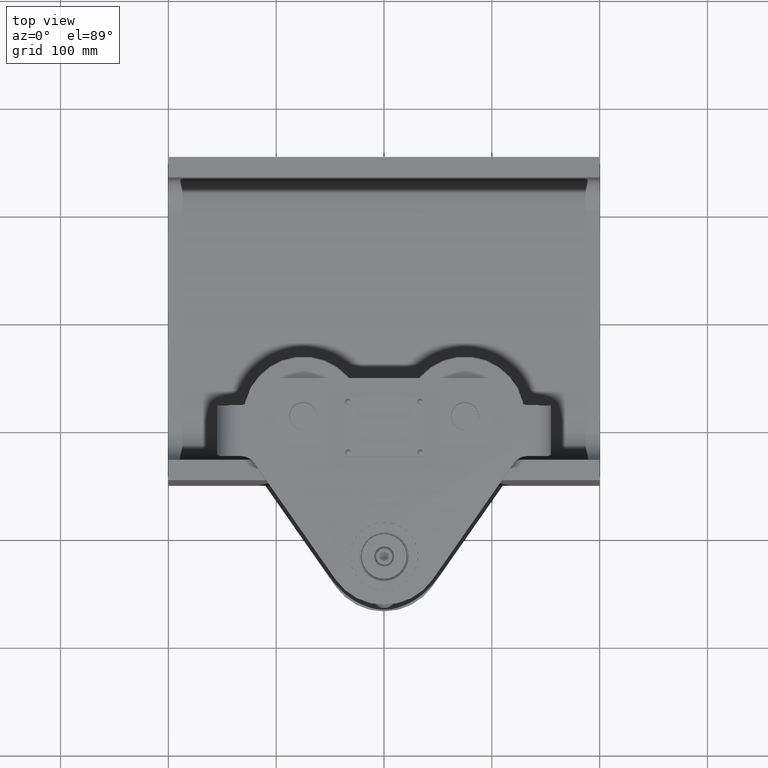
[diagram: clean part render]
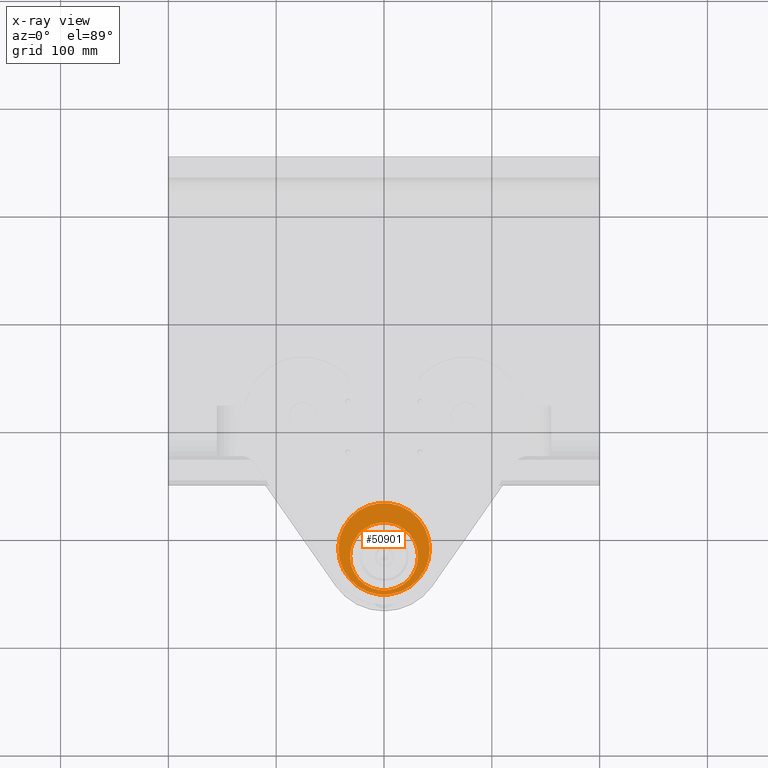
[diagram: x-ray — body ghosted, one internal face saturated and labeled with its STEP entity id]
A machine part, top view, then the same camera in x-ray: the body is ghosted and one INTERNAL B-rep face — a face not visible from any outside direction — is saturated and labeled: STEP entity #50901.
In plain terms, the highlighted planar face has unit normal (0, 0, 1).
Its self-contained STEP definition (entity closure, byte-faithful):
#2968 = CARTESIAN_POINT ( 'NONE',  ( 2.418565278885938000E-014, -220.9999999999999400, 164.9999999999999400 ) ) ;
#3552 = CARTESIAN_POINT ( 'NONE',  ( 2.418565278885938000E-014, -213.9999999999999400, 164.9999999999999400 ) ) ;
#4224 = ORIENTED_EDGE ( 'NONE', *, *, #39123, .F. ) ;
#4453 = AXIS2_PLACEMENT_3D ( 'NONE', #45977, #41595, #33731 ) ;
#4667 = VERTEX_POINT ( 'NONE', #14300 ) ;
#5195 = FACE_OUTER_BOUND ( 'NONE', #19441, .T. ) ;
#6652 = EDGE_CURVE ( 'NONE', #53213, #4667, #46993, .T. ) ;
#6693 = CARTESIAN_POINT ( 'NONE',  ( -31.49999999999997900, -220.9999999999999400, 164.9999999999999400 ) ) ;
#6821 = DIRECTION ( 'NONE',  ( 1.000000000000000000, 0.0000000000000000000, 0.0000000000000000000 ) ) ;
#8190 = PLANE ( 'NONE',  #4453 ) ;
#11118 = DIRECTION ( 'NONE',  ( 0.0000000000000000000, 0.0000000000000000000, 1.000000000000000000 ) ) ;
#14300 = CARTESIAN_POINT ( 'NONE',  ( 42.50000000000002800, -213.9999999999999400, 164.9999999999999400 ) ) ;
#14981 = CARTESIAN_POINT ( 'NONE',  ( 2.418565278885938000E-014, -220.9999999999999400, 164.9999999999999400 ) ) ;
#15537 = DIRECTION ( 'NONE',  ( 1.000000000000000000, 0.0000000000000000000, 0.0000000000000000000 ) ) ;
#19441 = EDGE_LOOP ( 'NONE', ( #24042, #46095 ) ) ;
#19561 = AXIS2_PLACEMENT_3D ( 'NONE', #2968, #11118, #53470 ) ;
#19568 = DIRECTION ( 'NONE',  ( 0.0000000000000000000, 0.0000000000000000000, 1.000000000000000000 ) ) ;
#19697 = CARTESIAN_POINT ( 'NONE',  ( -42.49999999999998600, -213.9999999999999400, 164.9999999999999400 ) ) ;
#20783 = AXIS2_PLACEMENT_3D ( 'NONE', #3552, #24144, #15537 ) ;
#24042 = ORIENTED_EDGE ( 'NONE', *, *, #49320, .T. ) ;
#24144 = DIRECTION ( 'NONE',  ( 0.0000000000000000000, 0.0000000000000000000, 1.000000000000000000 ) ) ;
#26489 = CIRCLE ( 'NONE', #20783, 42.50000000000000700 ) ;
#30006 = FACE_BOUND ( 'NONE', #42816, .T. ) ;
#30389 = VERTEX_POINT ( 'NONE', #6693 ) ;
#33731 = DIRECTION ( 'NONE',  ( 1.000000000000000000, 0.0000000000000000000, -0.0000000000000000000 ) ) ;
#35319 = CIRCLE ( 'NONE', #46013, 31.50000000000000000 ) ;
#36242 = ORIENTED_EDGE ( 'NONE', *, *, #46927, .F. ) ;
#37239 = AXIS2_PLACEMENT_3D ( 'NONE', #41020, #49189, #49730 ) ;
#39123 = EDGE_CURVE ( 'NONE', #41215, #30389, #35319, .T. ) ;
#41020 = CARTESIAN_POINT ( 'NONE',  ( 2.418565278885938000E-014, -213.9999999999999400, 164.9999999999999400 ) ) ;
#41215 = VERTEX_POINT ( 'NONE', #44406 ) ;
#41513 = CIRCLE ( 'NONE', #19561, 31.50000000000000000 ) ;
#41595 = DIRECTION ( 'NONE',  ( 0.0000000000000000000, 0.0000000000000000000, 1.000000000000000000 ) ) ;
#42816 = EDGE_LOOP ( 'NONE', ( #36242, #4224 ) ) ;
#44406 = CARTESIAN_POINT ( 'NONE',  ( 31.50000000000002100, -220.9999999999999400, 164.9999999999999400 ) ) ;
#45977 = CARTESIAN_POINT ( 'NONE',  ( 2.418565278885938000E-014, -213.9999999999999400, 164.9999999999999400 ) ) ;
#46013 = AXIS2_PLACEMENT_3D ( 'NONE', #14981, #19568, #6821 ) ;
#46095 = ORIENTED_EDGE ( 'NONE', *, *, #6652, .T. ) ;
#46927 = EDGE_CURVE ( 'NONE', #30389, #41215, #41513, .T. ) ;
#46993 = CIRCLE ( 'NONE', #37239, 42.50000000000000700 ) ;
#49189 = DIRECTION ( 'NONE',  ( 0.0000000000000000000, 0.0000000000000000000, 1.000000000000000000 ) ) ;
#49320 = EDGE_CURVE ( 'NONE', #4667, #53213, #26489, .T. ) ;
#49730 = DIRECTION ( 'NONE',  ( 1.000000000000000000, 0.0000000000000000000, 0.0000000000000000000 ) ) ;
#50901 = ADVANCED_FACE ( 'NONE', ( #30006, #5195 ), #8190, .T. ) ;
#53213 = VERTEX_POINT ( 'NONE', #19697 ) ;
#53470 = DIRECTION ( 'NONE',  ( 1.000000000000000000, 0.0000000000000000000, 0.0000000000000000000 ) ) ;